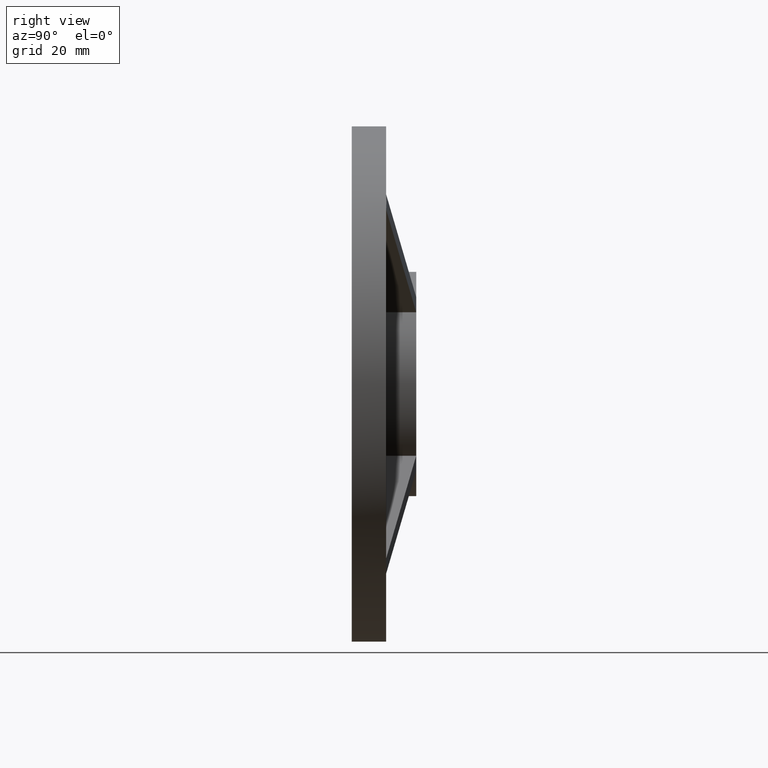
[diagram: clean part render]
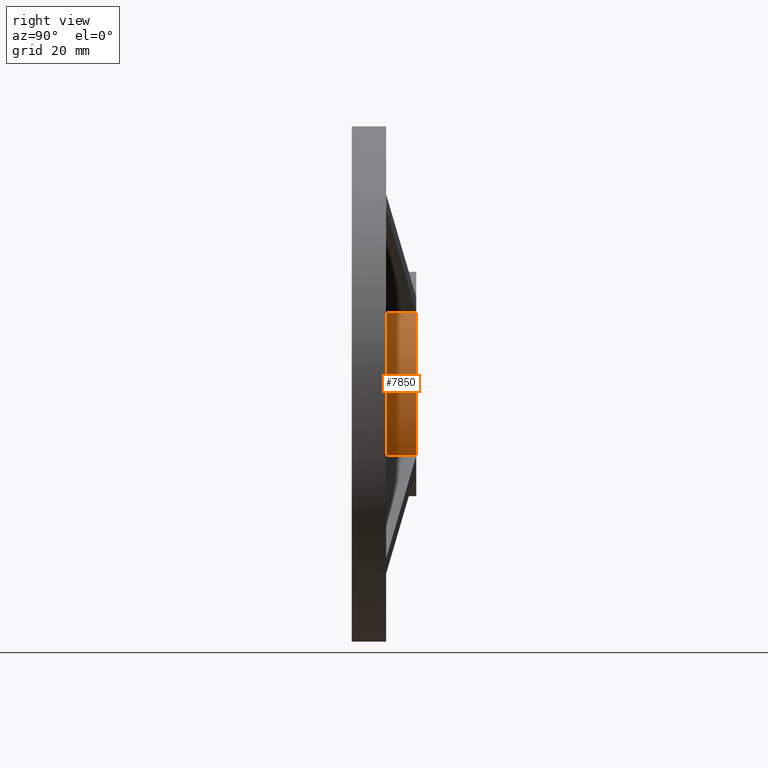
[diagram: same view with one face highlighted and labeled with its STEP entity id]
A machine part, right view. The second image highlights one B-rep face of the part: STEP entity #7850.
In plain terms, the highlighted cylindrical surface (partial cylindrical patch) has radius 26.25 mm, axis along (-0, -1, -0).
Its self-contained STEP definition (entity closure, byte-faithful):
#255 = CYLINDRICAL_SURFACE ( 'NONE', #2530, 26.25000000000000355 ) ;
#1133 = ORIENTED_EDGE ( 'NONE', *, *, #7906, .F. ) ;
#1168 = DIRECTION ( 'NONE',  ( 0.000000000000000000, 1.000000000000000000, 0.000000000000000000 ) ) ;
#1219 = VERTEX_POINT ( 'NONE', #8176 ) ;
#1273 = CARTESIAN_POINT ( 'NONE',  ( 20.24494882683449148, 8.000000000000000000, -16.70941492090170755 ) ) ;
#1437 = CARTESIAN_POINT ( 'NONE',  ( 20.24494882683449148, 15.00000000000000000, -16.70941492090170755 ) ) ;
#2530 = AXIS2_PLACEMENT_3D ( 'NONE', #8911, #8876, #9781 ) ;
#2607 = AXIS2_PLACEMENT_3D ( 'NONE', #2847, #1168, #8493 ) ;
#2847 = CARTESIAN_POINT ( 'NONE',  ( 0.000000000000000000, 8.000000000000000000, 0.000000000000000000 ) ) ;
#2921 = VECTOR ( 'NONE', #8034, 1000.000000000000000 ) ;
#3446 = DIRECTION ( 'NONE',  ( -0.000000000000000000, -1.000000000000000000, -0.000000000000000000 ) ) ;
#4186 = EDGE_CURVE ( 'NONE', #6531, #5430, #10429, .T. ) ;
#4994 = AXIS2_PLACEMENT_3D ( 'NONE', #10909, #10766, #9901 ) ;
#5116 = VERTEX_POINT ( 'NONE', #11796 ) ;
#5269 = CARTESIAN_POINT ( 'NONE',  ( 20.24494882683444530, 53.81721284095039692, 16.70941492090176439 ) ) ;
#5430 = VERTEX_POINT ( 'NONE', #1273 ) ;
#5661 = EDGE_LOOP ( 'NONE', ( #10312, #1133, #10519, #8275 ) ) ;
#6269 = VECTOR ( 'NONE', #3446, 1000.000000000000000 ) ;
#6531 = VERTEX_POINT ( 'NONE', #1437 ) ;
#7850 = ADVANCED_FACE ( 'NONE', ( #10707 ), #255, .T. ) ;
#7906 = EDGE_CURVE ( 'NONE', #1219, #6531, #11270, .T. ) ;
#8022 = CARTESIAN_POINT ( 'NONE',  ( 20.24494882683449148, 53.81721284095039692, -16.70941492090170755 ) ) ;
#8034 = DIRECTION ( 'NONE',  ( -0.000000000000000000, -1.000000000000000000, -0.000000000000000000 ) ) ;
#8176 = CARTESIAN_POINT ( 'NONE',  ( 20.24494882683445240, 15.00000000000000000, 16.70941492090176439 ) ) ;
#8275 = ORIENTED_EDGE ( 'NONE', *, *, #10943, .T. ) ;
#8493 = DIRECTION ( 'NONE',  ( 0.000000000000000000, 0.000000000000000000, 1.000000000000000000 ) ) ;
#8876 = DIRECTION ( 'NONE',  ( -0.000000000000000000, -1.000000000000000000, -0.000000000000000000 ) ) ;
#8911 = CARTESIAN_POINT ( 'NONE',  ( 0.000000000000000000, 15.00000000000000000, 0.000000000000000000 ) ) ;
#9781 = DIRECTION ( 'NONE',  ( 0.000000000000000000, 0.000000000000000000, -1.000000000000000000 ) ) ;
#9799 = CIRCLE ( 'NONE', #2607, 26.25000000000000355 ) ;
#9811 = EDGE_CURVE ( 'NONE', #1219, #5116, #10947, .T. ) ;
#9901 = DIRECTION ( 'NONE',  ( 0.000000000000000000, 0.000000000000000000, 1.000000000000000000 ) ) ;
#10312 = ORIENTED_EDGE ( 'NONE', *, *, #4186, .F. ) ;
#10429 = LINE ( 'NONE', #8022, #6269 ) ;
#10519 = ORIENTED_EDGE ( 'NONE', *, *, #9811, .T. ) ;
#10707 = FACE_OUTER_BOUND ( 'NONE', #5661, .T. ) ;
#10766 = DIRECTION ( 'NONE',  ( 0.000000000000000000, 1.000000000000000000, 0.000000000000000000 ) ) ;
#10909 = CARTESIAN_POINT ( 'NONE',  ( 0.000000000000000000, 15.00000000000000000, 0.000000000000000000 ) ) ;
#10943 = EDGE_CURVE ( 'NONE', #5116, #5430, #9799, .T. ) ;
#10947 = LINE ( 'NONE', #5269, #2921 ) ;
#11270 = CIRCLE ( 'NONE', #4994, 26.25000000000000355 ) ;
#11796 = CARTESIAN_POINT ( 'NONE',  ( 20.24494882683444530, 8.000000000000000000, 16.70941492090176439 ) ) ;